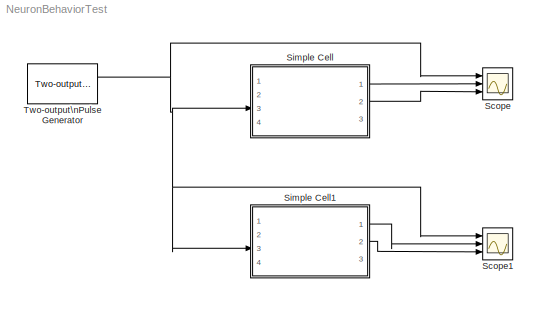
MODEL NeuronBehaviorTest
KIND model
BLOCK [Scope] Scope
  DataFormat = StructureWithTime
  Floating = off
  NumInputPorts = 3
  Ports = [3]
  SID = 4
  SampleTime = 0
  ShowLegends = off
  YMax = 1~1e-07~0
  YMin = -1~0~-1
  ZoomMode = yonly
BLOCK [Scope] Scope1
  DataFormat = StructureWithTime
  Floating = off
  NumInputPorts = 3
  Ports = [3]
  SID = 13
  SampleTime = 0
  SaveName = ScopeData1
  ShowLegends = off
  YMax = 1~1e-07~0
  YMin = -1~0~-1
  ZoomMode = xonly
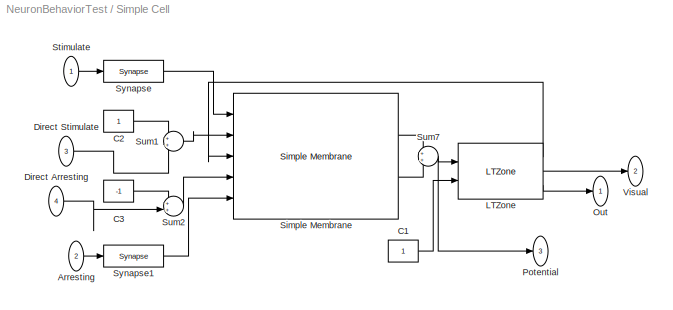
BLOCK [SubSystem] Simple Cell
  AncestorBlock = NeuroModelerLibrary/Simple Cells/Simple Cell
  Ports = [4, 3]
  RequestExecContextInheritance = off
  SID = 11
BLOCK [Inport] Simple Cell/Arresting
  IconDisplay = Port number
  Port = 2
  SID = 11:521
BLOCK [Constant] Simple Cell/C1
  SID = 11:522
BLOCK [Constant] Simple Cell/C2
  SID = 11:523
BLOCK [Constant] Simple Cell/C3
  SID = 11:524
  Value = -1
BLOCK [Inport] Simple Cell/Direct Arresting
  IconDisplay = Port number
  Port = 4
  SID = 11:1103
BLOCK [Inport] Simple Cell/Direct Stimulate
  IconDisplay = Port number
  Port = 3
  SID = 11:1101
BLOCK [Reference] Simple Cell/LTZone  REF=NeuroModelerLibrary/Neuron Elements/LTZone
  FB = 1.7
  IT = 0.005
  NM = 1
  Ports = [2, 3]
  SID = 11:525
  SourceBlock = NeuroModelerLibrary/Neuron Elements/LTZone
  SourceType = Ion pump
  T = 0.001
BLOCK [Outport] Simple Cell/Out
  IconDisplay = Port number
  SID = 11:530
BLOCK [Outport] Simple Cell/Potential
  IconDisplay = Port number
  Port = 3
  SID = 11:532
BLOCK [Reference] Simple Cell/Simple Membrane  REF=NeuroModelerLibrary/Neuron Elements/Simple Membrane
  ACm = 1e-9
  ARFm = 1e7
  ARm = 1e7
  ECm = 1e-9
  ERFm = 1e8
  ERm = 1e7
  Ports = [5, 2]
  SID = 11:526
  SourceBlock = NeuroModelerLibrary/Neuron Elements/Simple Membrane
BLOCK [Inport] Simple Cell/Stimulate
  IconDisplay = Port number
  SID = 11:520
BLOCK [Sum] Simple Cell/Sum1
  IconShape = round
  Ports = [2, 1]
  SID = 11:1100
BLOCK [Sum] Simple Cell/Sum2
  IconShape = round
  Ports = [2, 1]
  SID = 11:1102
BLOCK [Sum] Simple Cell/Sum7
  IconShape = round
  Ports = [2, 1]
  SID = 11:527
BLOCK [Reference] Simple Cell/Synapse  REF=NeuroModelerLibrary/Neuron Elements/Synapse
  DecompositionTC = 0.01
  Ports = [1, 1]
  SID = 11:528
  SecretionTC = 0.001
  SourceBlock = NeuroModelerLibrary/Neuron Elements/Synapse
  UseKsi = on
  gamma = 1e8
  ksi = 2
BLOCK [Reference] Simple Cell/Synapse1  REF=NeuroModelerLibrary/Neuron Elements/Synapse
  DecompositionTC = 0.01
  Ports = [1, 1]
  SID = 11:529
  SecretionTC = 0.001
  SourceBlock = NeuroModelerLibrary/Neuron Elements/Synapse
  UseKsi = on
  gamma = 1e8
  ksi = 2
BLOCK [Outport] Simple Cell/Visual
  IconDisplay = Port number
  Port = 2
  SID = 11:531
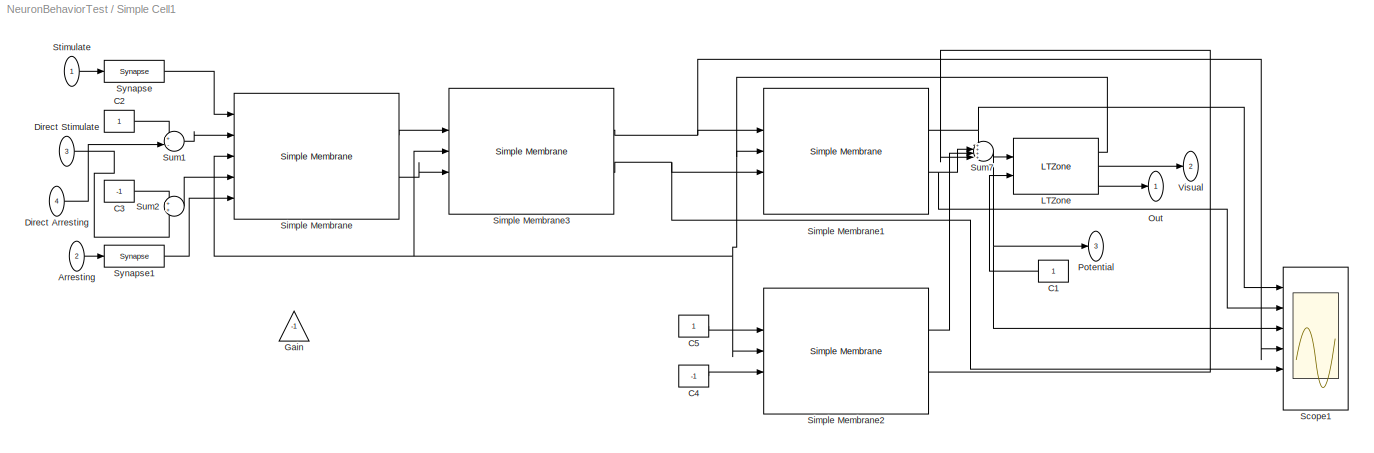
BLOCK [SubSystem] Simple Cell1
  AncestorBlock = NeuroModelerLibrary/Simple Cells/Simple Cell
  Ports = [4, 3]
  RequestExecContextInheritance = off
  SID = 12
BLOCK [Inport] Simple Cell1/Arresting
  IconDisplay = Port number
  Port = 2
  SID = 12:521
BLOCK [Constant] Simple Cell1/C1
  SID = 12:522
BLOCK [Constant] Simple Cell1/C2
  SID = 12:523
BLOCK [Constant] Simple Cell1/C3
  SID = 12:524
  Value = -1
BLOCK [Constant] Simple Cell1/C4
  SID = 12:1106
  Value = -1
BLOCK [Constant] Simple Cell1/C5
  SID = 12:1107
BLOCK [Inport] Simple Cell1/Direct Arresting
  IconDisplay = Port number
  Port = 4
  SID = 12:1103
BLOCK [Inport] Simple Cell1/Direct Stimulate
  IconDisplay = Port number
  Port = 3
  SID = 12:1101
BLOCK [Gain] Simple Cell1/Gain
  Gain = -1
  SID = 12:1108
BLOCK [Reference] Simple Cell1/LTZone  REF=NeuroModelerLibrary/Neuron Elements/LTZone
  FB = 1.7
  IT = 0.005
  NM = 1
  Ports = [2, 3]
  SID = 12:525
  SourceBlock = NeuroModelerLibrary/Neuron Elements/LTZone
  SourceType = Ion pump
  T = 0.001
BLOCK [Outport] Simple Cell1/Out
  IconDisplay = Port number
  SID = 12:530
BLOCK [Outport] Simple Cell1/Potential
  IconDisplay = Port number
  Port = 3
  SID = 12:532
BLOCK [Scope] Simple Cell1/Scope1
  DataFormat = StructureWithTime
  Floating = off
  NumInputPorts = 6
  Ports = [6]
  SID = 12:1110
  SampleTime = 0
  SaveName = ScopeData2
  ShowLegends = off
  YMax = 1~1e-07~0~5~5~5
  YMin = -1~0~-1~-5~-5~-5
  ZoomMode = xonly
BLOCK [Reference] Simple Cell1/Simple Membrane  REF=NeuroModelerLibrary/Neuron Elements/Simple Membrane
  ACm = 1e-9
  ARFm = 1e8
  ARm = 1e7
  ECm = 1e-9
  ERFm = 1e8
  ERm = 1e7
  Ports = [5, 2]
  SID = 12:526
  SourceBlock = NeuroModelerLibrary/Neuron Elements/Simple Membrane
BLOCK [Reference] Simple Cell1/Simple Membrane1  REF=NeuroModelerLibrary/Neuron Elements/Simple Membrane
  ACm = 1e-9
  ARFm = 1e8
  ARm = 1e7
  ECm = 1e-9
  ERFm = 1e8
  ERm = 1e7
  Ports = [5, 2]
  SID = 12:1104
  SourceBlock = NeuroModelerLibrary/Neuron Elements/Simple Membrane
BLOCK [Reference] Simple Cell1/Simple Membrane2  REF=NeuroModelerLibrary/Neuron Elements/Simple Membrane
  ACm = 1e-9
  ARFm = 1e8
  ARm = 1e7
  ECm = 1e-9
  ERFm = 1e8
  ERm = 1e7
  Ports = [5, 2]
  SID = 12:1105
  SourceBlock = NeuroModelerLibrary/Neuron Elements/Simple Membrane
BLOCK [Reference] Simple Cell1/Simple Membrane3  REF=NeuroModelerLibrary/Neuron Elements/Simple Membrane
  ACm = 1e-9
  ARFm = 1e7
  ARm = 1e9
  ECm = 1e-9
  ERFm = 1e8
  ERm = 1e9
  Ports = [5, 2]
  SID = 12:1109
  SourceBlock = NeuroModelerLibrary/Neuron Elements/Simple Membrane
BLOCK [Inport] Simple Cell1/Stimulate
  IconDisplay = Port number
  SID = 12:520
BLOCK [Sum] Simple Cell1/Sum1
  IconShape = round
  Inputs = +-
  Ports = [2, 1]
  SID = 12:1100
BLOCK [Sum] Simple Cell1/Sum2
  IconShape = round
  Ports = [2, 1]
  SID = 12:1102
BLOCK [Sum] Simple Cell1/Sum7
  IconShape = round
  Inputs = ++++
  Ports = [4, 1]
  SID = 12:527
BLOCK [Reference] Simple Cell1/Synapse  REF=NeuroModelerLibrary/Neuron Elements/Synapse
  DecompositionTC = 0.01
  Ports = [1, 1]
  SID = 12:528
  SecretionTC = 0.001
  SourceBlock = NeuroModelerLibrary/Neuron Elements/Synapse
  UseKsi = on
  gamma = 1e8
  ksi = 2
BLOCK [Reference] Simple Cell1/Synapse1  REF=NeuroModelerLibrary/Neuron Elements/Synapse
  DecompositionTC = 0.01
  Ports = [1, 1]
  SID = 12:529
  SecretionTC = 0.001
  SourceBlock = NeuroModelerLibrary/Neuron Elements/Synapse
  UseKsi = on
  gamma = 1e8
  ksi = 2
BLOCK [Outport] Simple Cell1/Visual
  IconDisplay = Port number
  Port = 2
  SID = 12:531
BLOCK [Reference] Two-output\nPulse Generator  REF=NeuroModelerLibrary/Support/Two-output\nPulse Generator
  A = 0.01
  OOff1 = 5.5
  OOff2 = 1.2
  OOn1 = 5
  OOn2 = 1.1
  P1 = 2000
  P2 = 2000
  PW = 1000
  Ports = [0, 2]
  SID = 9
  ST = 0.001
  SourceBlock = NeuroModelerLibrary/Support/Two-output\nPulse Generator
LINE Simple Cell/Arresting:1 -> Simple Cell/Synapse1:1
LINE Simple Cell/C1:1 -> Simple Cell/LTZone:2
LINE Simple Cell/C2:1 -> Simple Cell/Sum1:1
LINE Simple Cell/C3:1 -> Simple Cell/Sum2:1
LINE Simple Cell/Direct Arresting:1 -> Simple Cell/Sum2:2
LINE Simple Cell/Direct Stimulate:1 -> Simple Cell/Sum1:2
LINE Simple Cell/LTZone:1 -> Simple Cell/Simple Membrane:3
LINE Simple Cell/LTZone:2 -> Simple Cell/Visual:1
LINE Simple Cell/LTZone:3 -> Simple Cell/Out:1
LINE Simple Cell/Simple Membrane:1 -> Simple Cell/Sum7:1
LINE Simple Cell/Simple Membrane:2 -> Simple Cell/Sum7:2
LINE Simple Cell/Stimulate:1 -> Simple Cell/Synapse:1
LINE Simple Cell/Sum1:1 -> Simple Cell/Simple Membrane:2
LINE Simple Cell/Sum2:1 -> Simple Cell/Simple Membrane:4
NET Simple Cell/Sum7:1 -> Simple Cell/LTZone:1, Simple Cell/Potential:1
LINE Simple Cell/Synapse1:1 -> Simple Cell/Simple Membrane:5
LINE Simple Cell/Synapse:1 -> Simple Cell/Simple Membrane:1
LINE Simple Cell1/Arresting:1 -> Simple Cell1/Synapse1:1
LINE Simple Cell1/C1:1 -> Simple Cell1/LTZone:2
LINE Simple Cell1/C2:1 -> Simple Cell1/Sum1:1
LINE Simple Cell1/C3:1 -> Simple Cell1/Sum2:1
LINE Simple Cell1/C4:1 -> Simple Cell1/Simple Membrane2:4
LINE Simple Cell1/C5:1 -> Simple Cell1/Simple Membrane2:2
LINE Simple Cell1/Direct Arresting:1 -> Simple Cell1/Sum1:2
LINE Simple Cell1/Direct Stimulate:1 -> Simple Cell1/Sum2:2
NET Simple Cell1/LTZone:1 -> Simple Cell1/Simple Membrane1:3, Simple Cell1/Simple Membrane2:3, Simple Cell1/Simple Membrane3:3, Simple Cell1/Simple Membrane:3
LINE Simple Cell1/LTZone:2 -> Simple Cell1/Visual:1
LINE Simple Cell1/LTZone:3 -> Simple Cell1/Out:1
NET Simple Cell1/Simple Membrane1:1 -> Simple Cell1/Scope1:1, Simple Cell1/Sum7:1
NET Simple Cell1/Simple Membrane1:2 -> Simple Cell1/Scope1:2, Simple Cell1/Sum7:2
LINE Simple Cell1/Simple Membrane2:1 -> Simple Cell1/Sum7:3
LINE Simple Cell1/Simple Membrane2:2 -> Simple Cell1/Sum7:4
NET Simple Cell1/Simple Membrane3:1 -> Simple Cell1/Scope1:4, Simple Cell1/Simple Membrane1:2
NET Simple Cell1/Simple Membrane3:2 -> Simple Cell1/Scope1:5, Simple Cell1/Simple Membrane1:4
LINE Simple Cell1/Simple Membrane:1 -> Simple Cell1/Simple Membrane3:2
LINE Simple Cell1/Simple Membrane:2 -> Simple Cell1/Simple Membrane3:4
LINE Simple Cell1/Stimulate:1 -> Simple Cell1/Synapse:1
LINE Simple Cell1/Sum1:1 -> Simple Cell1/Simple Membrane:2
LINE Simple Cell1/Sum2:1 -> Simple Cell1/Simple Membrane:4
NET Simple Cell1/Sum7:1 -> Simple Cell1/LTZone:1, Simple Cell1/Potential:1, Simple Cell1/Scope1:3
LINE Simple Cell1/Synapse1:1 -> Simple Cell1/Simple Membrane:5
LINE Simple Cell1/Synapse:1 -> Simple Cell1/Simple Membrane:1
LINE Simple Cell1:1 -> Scope1:2
LINE Simple Cell1:2 -> Scope1:3
LINE Simple Cell:1 -> Scope:2
LINE Simple Cell:2 -> Scope:3
NET Two-output\nPulse Generator:1 -> Scope1:1, Scope:1, Simple Cell1:3, Simple Cell:3
note: NET lines group one-source signal fan-out (src -> all destinations, sorted); 1:1 wires keep LINE
